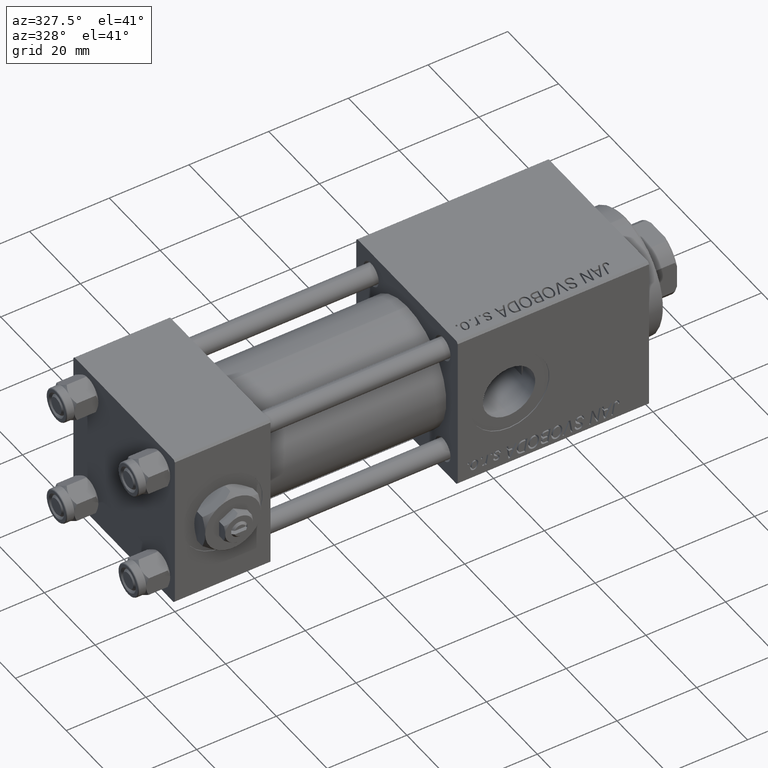
[diagram: clean part render]
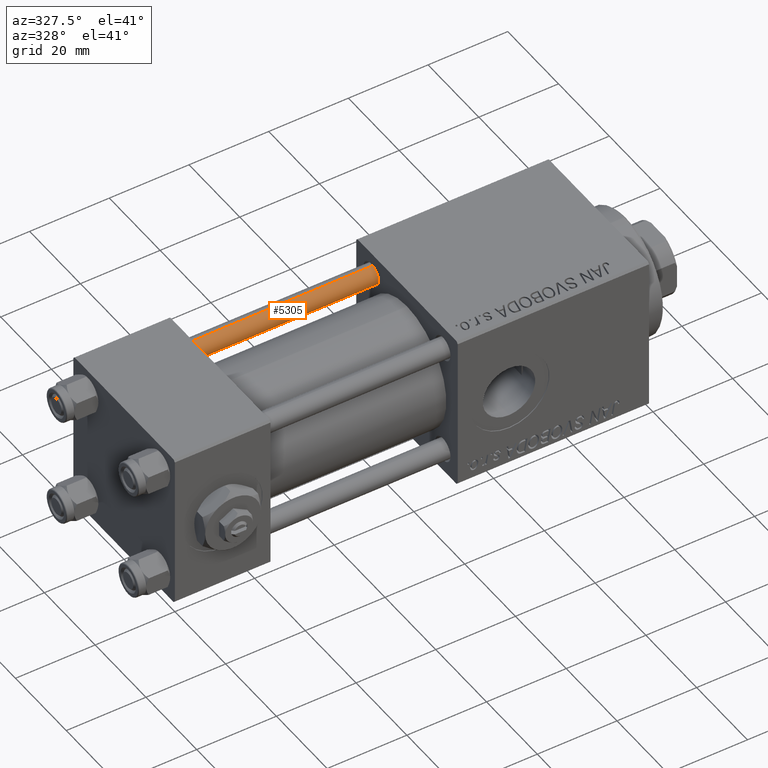
[diagram: same view with one face highlighted and labeled with its STEP entity id]
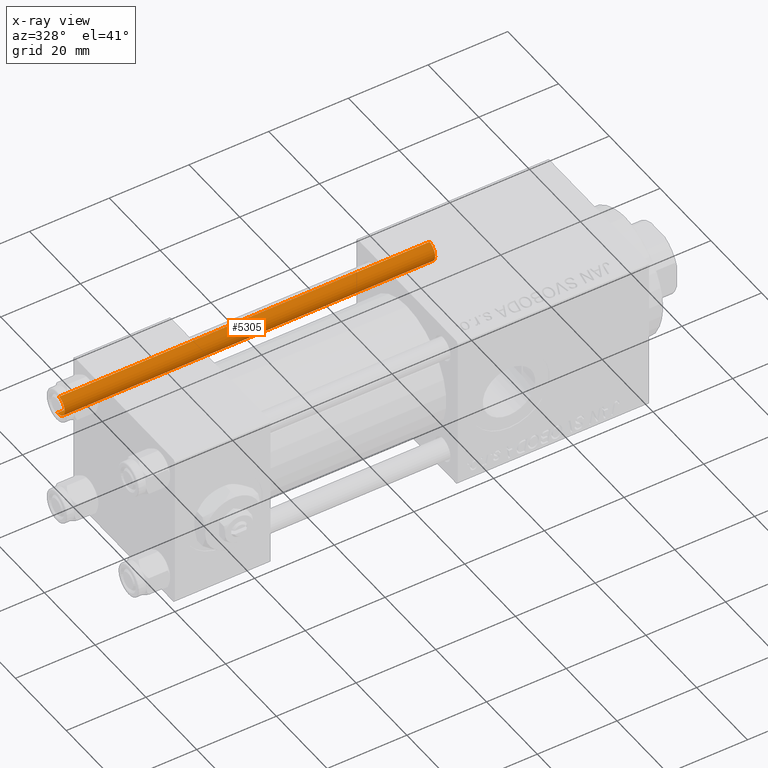
[diagram: x-ray of the same camera — body ghosted, the highlighted face saturated]
A machine part, auxiliary view. The second image highlights one B-rep face of the part: STEP entity #5305.
The next image is the same camera in x-ray: the body ghosted, the highlighted face saturated — about 0% of this face is hidden behind the body in this view.
In plain terms, the highlighted cylindrical surface (edge-blend (fillet) strip) has radius 2.5 mm, axis along (-1, 0, 0).
Its self-contained STEP definition (entity closure, byte-faithful):
#895 = CARTESIAN_POINT ( 'NONE',  ( 0.000000000000000000, 0.000000000000000000, 94.00000000000000000 ) ) ;
#2214 = DIRECTION ( 'NONE',  ( -0.000000000000000000, -0.000000000000000000, -1.000000000000000000 ) ) ;
#3714 = ORIENTED_EDGE ( 'NONE', *, *, #27264, .T. ) ;
#5305 = ADVANCED_FACE ( 'NONE', ( #20858 ), #36856, .T. ) ;
#5385 = VECTOR ( 'NONE', #49491, 1000.000000000000000 ) ;
#7281 = EDGE_CURVE ( 'NONE', #29749, #8761, #45820, .T. ) ;
#8300 = EDGE_LOOP ( 'NONE', ( #8616, #11296, #45995, #3714 ) ) ;
#8616 = ORIENTED_EDGE ( 'NONE', *, *, #7281, .F. ) ;
#8761 = VERTEX_POINT ( 'NONE', #12378 ) ;
#9945 = CARTESIAN_POINT ( 'NONE',  ( 2.500000000000000000, 3.061616997868383141E-16, 93.50000000000001421 ) ) ;
#11296 = ORIENTED_EDGE ( 'NONE', *, *, #35381, .T. ) ;
#11412 = AXIS2_PLACEMENT_3D ( 'NONE', #21739, #37729, #49813 ) ;
#12255 = CIRCLE ( 'NONE', #11412, 2.500000000000000000 ) ;
#12378 = CARTESIAN_POINT ( 'NONE',  ( 2.500000000000000000, 3.061616997868383141E-16, 0.5000000000000004441 ) ) ;
#12974 = DIRECTION ( 'NONE',  ( -1.000000000000000000, 0.000000000000000000, 0.000000000000000000 ) ) ;
#15048 = CIRCLE ( 'NONE', #43522, 2.500000000000000000 ) ;
#19981 = DIRECTION ( 'NONE',  ( 1.000000000000000000, 0.000000000000000000, 0.000000000000000000 ) ) ;
#20412 = AXIS2_PLACEMENT_3D ( 'NONE', #895, #32919, #12974 ) ;
#20858 = FACE_OUTER_BOUND ( 'NONE', #8300, .T. ) ;
#21739 = CARTESIAN_POINT ( 'NONE',  ( 0.000000000000000000, 0.000000000000000000, 0.5000000000000004441 ) ) ;
#22161 = LINE ( 'NONE', #38165, #26052 ) ;
#24325 = VERTEX_POINT ( 'NONE', #46463 ) ;
#26052 = VECTOR ( 'NONE', #2214, 1000.000000000000000 ) ;
#26119 = CARTESIAN_POINT ( 'NONE',  ( 2.500000000000000000, 3.061616997868383141E-16, 94.00000000000000000 ) ) ;
#27264 = EDGE_CURVE ( 'NONE', #24325, #8761, #12255, .T. ) ;
#29749 = VERTEX_POINT ( 'NONE', #9945 ) ;
#32043 = CARTESIAN_POINT ( 'NONE',  ( 0.000000000000000000, 0.000000000000000000, 93.50000000000001421 ) ) ;
#32919 = DIRECTION ( 'NONE',  ( -0.000000000000000000, -0.000000000000000000, -1.000000000000000000 ) ) ;
#33017 = CARTESIAN_POINT ( 'NONE',  ( -2.500000000000000000, 0.000000000000000000, 93.50000000000001421 ) ) ;
#35381 = EDGE_CURVE ( 'NONE', #29749, #35877, #15048, .T. ) ;
#35877 = VERTEX_POINT ( 'NONE', #33017 ) ;
#36856 = CYLINDRICAL_SURFACE ( 'NONE', #20412, 2.500000000000000000 ) ;
#37729 = DIRECTION ( 'NONE',  ( -0.000000000000000000, -0.000000000000000000, 1.000000000000000000 ) ) ;
#37920 = EDGE_CURVE ( 'NONE', #35877, #24325, #22161, .T. ) ;
#38165 = CARTESIAN_POINT ( 'NONE',  ( -2.500000000000000000, 0.000000000000000000, 94.00000000000000000 ) ) ;
#43522 = AXIS2_PLACEMENT_3D ( 'NONE', #32043, #48066, #19981 ) ;
#45820 = LINE ( 'NONE', #26119, #5385 ) ;
#45995 = ORIENTED_EDGE ( 'NONE', *, *, #37920, .T. ) ;
#46463 = CARTESIAN_POINT ( 'NONE',  ( -2.500000000000000000, 0.000000000000000000, 0.5000000000000004441 ) ) ;
#48066 = DIRECTION ( 'NONE',  ( 0.000000000000000000, 0.000000000000000000, -1.000000000000000000 ) ) ;
#49491 = DIRECTION ( 'NONE',  ( -0.000000000000000000, -0.000000000000000000, -1.000000000000000000 ) ) ;
#49813 = DIRECTION ( 'NONE',  ( 1.000000000000000000, 0.000000000000000000, 0.000000000000000000 ) ) ;